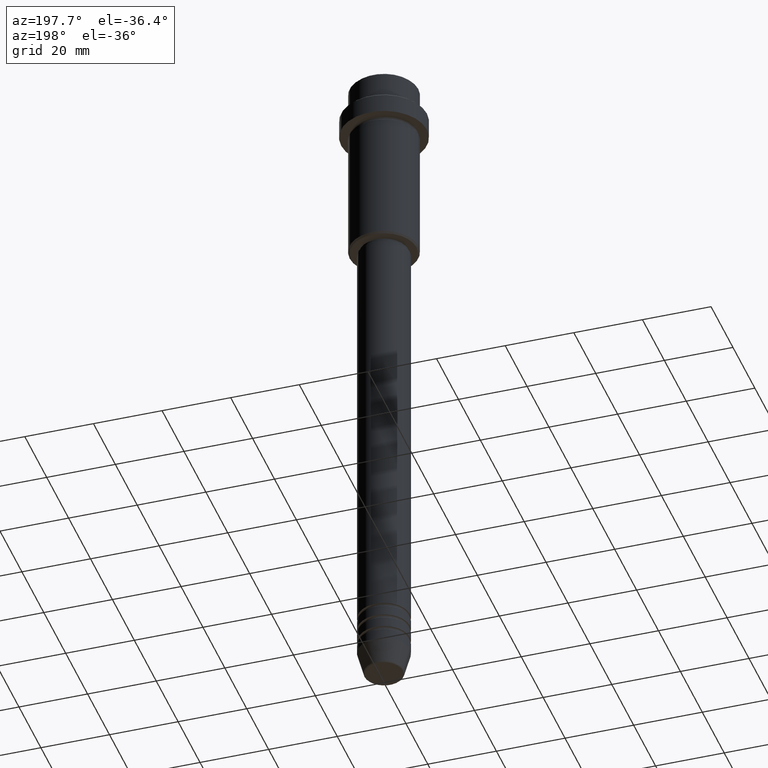
[diagram: clean part render]
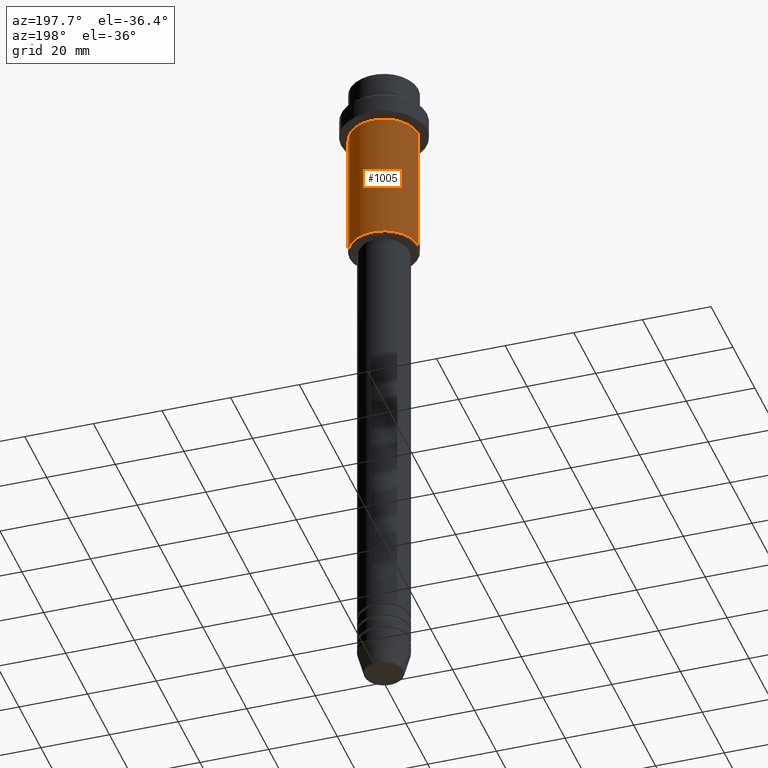
[diagram: same view with one face highlighted and labeled with its STEP entity id]
A machine part, auxiliary view. The second image highlights one B-rep face of the part: STEP entity #1005.
In plain terms, the highlighted cylindrical surface (edge-blend (fillet) strip) has radius 10 mm, axis along (-0, -0, 1).
Its self-contained STEP definition (entity closure, byte-faithful):
#15 = CARTESIAN_POINT ( 'NONE',  ( -9.999999999999998224, 1.224646799147353059E-15, -54.50000000000002132 ) ) ;
#33 = DIRECTION ( 'NONE',  ( -0.000000000000000000, -0.000000000000000000, 1.000000000000000000 ) ) ;
#38 = CARTESIAN_POINT ( 'NONE',  ( 9.999999999999998224, 0.000000000000000000, -54.50000000000002132 ) ) ;
#50 = LINE ( 'NONE', #479, #1036 ) ;
#68 = VERTEX_POINT ( 'NONE', #1106 ) ;
#128 = ORIENTED_EDGE ( 'NONE', *, *, #412, .F. ) ;
#147 = DIRECTION ( 'NONE',  ( -0.000000000000000000, -0.000000000000000000, 1.000000000000000000 ) ) ;
#213 = DIRECTION ( 'NONE',  ( -0.000000000000000000, -0.000000000000000000, 1.000000000000000000 ) ) ;
#276 = AXIS2_PLACEMENT_3D ( 'NONE', #718, #1251, #1364 ) ;
#313 = ORIENTED_EDGE ( 'NONE', *, *, #902, .T. ) ;
#383 = VERTEX_POINT ( 'NONE', #15 ) ;
#412 = EDGE_CURVE ( 'NONE', #607, #68, #480, .T. ) ;
#414 = DIRECTION ( 'NONE',  ( -1.000000000000000000, 0.000000000000000000, 0.000000000000000000 ) ) ;
#419 = EDGE_LOOP ( 'NONE', ( #1045, #313, #128, #948 ) ) ;
#479 = CARTESIAN_POINT ( 'NONE',  ( 9.999999999999998224, 0.000000000000000000, 0.000000000000000000 ) ) ;
#480 = CIRCLE ( 'NONE', #750, 9.999999999999998224 ) ;
#491 = DIRECTION ( 'NONE',  ( -0.000000000000000000, -0.000000000000000000, 1.000000000000000000 ) ) ;
#544 = EDGE_CURVE ( 'NONE', #628, #607, #50, .T. ) ;
#607 = VERTEX_POINT ( 'NONE', #1140 ) ;
#628 = VERTEX_POINT ( 'NONE', #38 ) ;
#643 = VECTOR ( 'NONE', #33, 1000.000000000000000 ) ;
#652 = CARTESIAN_POINT ( 'NONE',  ( 0.000000000000000000, 0.000000000000000000, -16.00000000000000000 ) ) ;
#701 = CARTESIAN_POINT ( 'NONE',  ( -9.999999999999998224, 1.224646799147353059E-15, 0.000000000000000000 ) ) ;
#718 = CARTESIAN_POINT ( 'NONE',  ( 0.000000000000000000, 0.000000000000000000, 0.000000000000000000 ) ) ;
#750 = AXIS2_PLACEMENT_3D ( 'NONE', #652, #147, #906 ) ;
#892 = CIRCLE ( 'NONE', #1250, 9.999999999999998224 ) ;
#902 = EDGE_CURVE ( 'NONE', #383, #68, #921, .T. ) ;
#906 = DIRECTION ( 'NONE',  ( 1.000000000000000000, 0.000000000000000000, 0.000000000000000000 ) ) ;
#921 = LINE ( 'NONE', #701, #643 ) ;
#948 = ORIENTED_EDGE ( 'NONE', *, *, #544, .F. ) ;
#1005 = ADVANCED_FACE ( 'NONE', ( #1109 ), #1006, .T. ) ;
#1006 = CYLINDRICAL_SURFACE ( 'NONE', #276, 9.999999999999998224 ) ;
#1036 = VECTOR ( 'NONE', #491, 1000.000000000000000 ) ;
#1045 = ORIENTED_EDGE ( 'NONE', *, *, #1217, .T. ) ;
#1106 = CARTESIAN_POINT ( 'NONE',  ( -9.999999999999998224, 1.224646799147353059E-15, -16.00000000000000000 ) ) ;
#1109 = FACE_OUTER_BOUND ( 'NONE', #419, .T. ) ;
#1140 = CARTESIAN_POINT ( 'NONE',  ( 9.999999999999998224, 0.000000000000000000, -16.00000000000000000 ) ) ;
#1217 = EDGE_CURVE ( 'NONE', #628, #383, #892, .T. ) ;
#1250 = AXIS2_PLACEMENT_3D ( 'NONE', #1289, #213, #414 ) ;
#1251 = DIRECTION ( 'NONE',  ( -0.000000000000000000, -0.000000000000000000, 1.000000000000000000 ) ) ;
#1289 = CARTESIAN_POINT ( 'NONE',  ( 0.000000000000000000, 0.000000000000000000, -54.50000000000002132 ) ) ;
#1364 = DIRECTION ( 'NONE',  ( 1.000000000000000000, 0.000000000000000000, 0.000000000000000000 ) ) ;